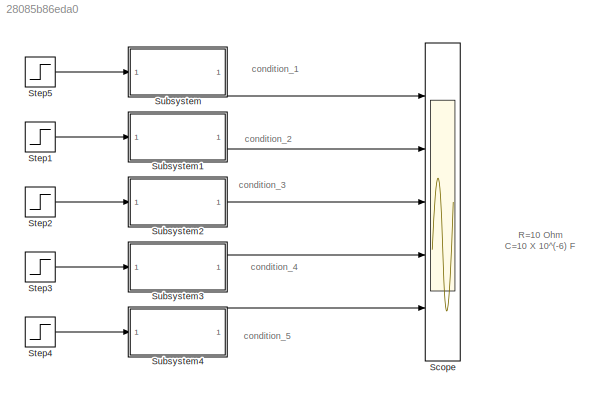
MODEL slx_28085b86eda0
KIND model
CONFIG AbsTol = auto
CONFIG EnableMultiTasking = off
CONFIG FixedStep = auto
CONFIG MaxStep = auto
CONFIG MinStep = auto
CONFIG RelTol = 1e-3
CONFIG SampleTimeConstraint = Unconstrained
CONFIG SolverName = VariableStepAuto
CONFIG StartTime = 0.0
CONFIG StopTime = 10.0
BLOCK [Scope] Scope
  Floating = off
  NumInputPorts = 5
  Ports = [5]
  ScopeSpecificationString = Simulink.scopes.TimeScopeBlockCfg('CurrentConfiguration', extmgr.ConfigurationSet(extmgr.Configuration('Core','General UI',true),extmgr.Configuration('Core','Source UI',true),extmgr.Configuration('Sources','WiredSimulink',true),extmgr.Configuration('Visuals','Time Domain',true,'SerializedDisplays',{struct('MinYLimReal','-0.5875','MaxYLimReal','5.2875','YLabelReal','','MinYLimMag','0.00000','MaxYLi...<+4711ch>
BLOCK [Step] Step1
  After = 5
  Before = 2
  SampleTime = 0
BLOCK [Step] Step2
  After = 13
  Before = 3
  SampleTime = 0
  Time = 2
BLOCK [Step] Step3
  After = 14
  Before = 4
  SampleTime = 0
BLOCK [Step] Step4
  After = 15
  Before = 5
  SampleTime = 0
BLOCK [Step] Step5
  After = 5
  Before = 2
  SampleTime = 0
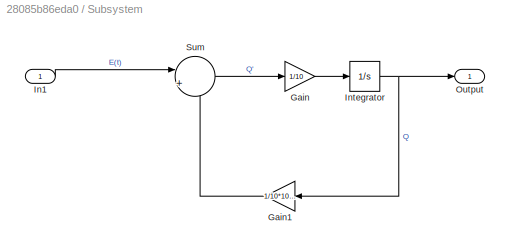
BLOCK [SubSystem] Subsystem
  Ports = [1, 1]
  RequestExecContextInheritance = off
BLOCK [Gain] Subsystem/Gain
  Gain = 1/10
BLOCK [Gain] Subsystem/Gain1
  Gain = 1/10*10^(-6)
  NameLocation = top
BLOCK [Inport] Subsystem/In1
BLOCK [Integrator] Subsystem/Integrator
  Ports = [1, 1]
BLOCK [Outport] Subsystem/Output
  NameLocation = top
BLOCK [Sum] Subsystem/Sum
  Inputs = |+-
  Ports = [2, 1]
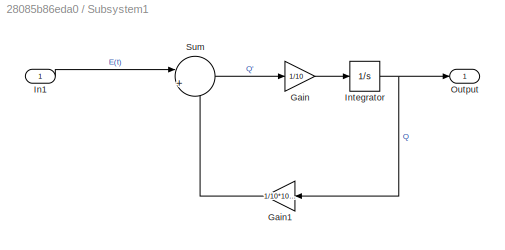
BLOCK [SubSystem] Subsystem1
  Ports = [1, 1]
  RequestExecContextInheritance = off
BLOCK [Gain] Subsystem1/Gain
  Gain = 1/10
BLOCK [Gain] Subsystem1/Gain1
  Gain = 1/10*10^(-6)
  NameLocation = top
BLOCK [Inport] Subsystem1/In1
BLOCK [Integrator] Subsystem1/Integrator
  Ports = [1, 1]
BLOCK [Outport] Subsystem1/Output
BLOCK [Sum] Subsystem1/Sum
  Inputs = |+-
  Ports = [2, 1]
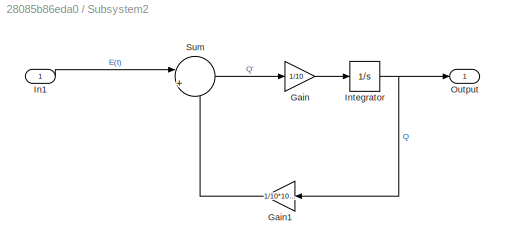
BLOCK [SubSystem] Subsystem2
  Ports = [1, 1]
  RequestExecContextInheritance = off
BLOCK [Gain] Subsystem2/Gain
  Gain = 1/10
BLOCK [Gain] Subsystem2/Gain1
  Gain = 1/10*10^(-6)
  NameLocation = top
BLOCK [Inport] Subsystem2/In1
BLOCK [Integrator] Subsystem2/Integrator
  Ports = [1, 1]
BLOCK [Outport] Subsystem2/Output
BLOCK [Sum] Subsystem2/Sum
  Inputs = |+-
  Ports = [2, 1]
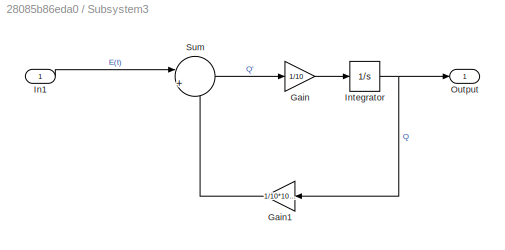
BLOCK [SubSystem] Subsystem3
  Ports = [1, 1]
  RequestExecContextInheritance = off
BLOCK [Gain] Subsystem3/Gain
  Gain = 1/10
BLOCK [Gain] Subsystem3/Gain1
  Gain = 1/10*10^(-6)
  NameLocation = top
BLOCK [Inport] Subsystem3/In1
BLOCK [Integrator] Subsystem3/Integrator
  Ports = [1, 1]
BLOCK [Outport] Subsystem3/Output
BLOCK [Sum] Subsystem3/Sum
  Inputs = |+-
  Ports = [2, 1]
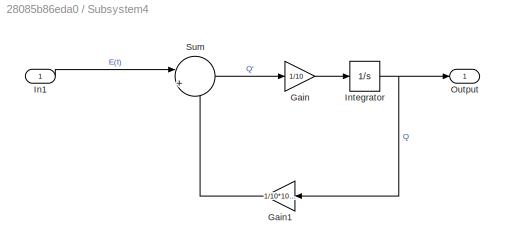
BLOCK [SubSystem] Subsystem4
  Ports = [1, 1]
  RequestExecContextInheritance = off
BLOCK [Gain] Subsystem4/Gain
  Gain = 1/10
BLOCK [Gain] Subsystem4/Gain1
  Gain = 1/10*10^(-6)
  NameLocation = top
BLOCK [Inport] Subsystem4/In1
BLOCK [Integrator] Subsystem4/Integrator
  Ports = [1, 1]
BLOCK [Outport] Subsystem4/Output
BLOCK [Sum] Subsystem4/Sum
  Inputs = |+-
  Ports = [2, 1]
ANNOTATION (root): R=10 Ohm C=10 X 10^(-6) F
ANNOTATION (root): condition_1
ANNOTATION (root): condition_2
ANNOTATION (root): condition_3
ANNOTATION (root): condition_4
ANNOTATION (root): condition_5
LINE Step1:1 -> Subsystem1:1
LINE Step2:1 -> Subsystem2:1
LINE Step3:1 -> Subsystem3:1
LINE Step4:1 -> Subsystem4:1
LINE Step5:1 -> Subsystem:1
LINE Subsystem/Gain1:1 -> Subsystem/Sum:2
LINE Subsystem/Gain:1 -> Subsystem/Integrator:1
LINE Subsystem/In1:1 -> Subsystem/Sum:1
NET Subsystem/Integrator:1 -> Subsystem/Gain1:1, Subsystem/Output:1
LINE Subsystem/Sum:1 -> Subsystem/Gain:1
LINE Subsystem1/Gain1:1 -> Subsystem1/Sum:2
LINE Subsystem1/Gain:1 -> Subsystem1/Integrator:1
LINE Subsystem1/In1:1 -> Subsystem1/Sum:1
NET Subsystem1/Integrator:1 -> Subsystem1/Gain1:1, Subsystem1/Output:1
LINE Subsystem1/Sum:1 -> Subsystem1/Gain:1
LINE Subsystem1:1 -> Scope:2
LINE Subsystem2/Gain1:1 -> Subsystem2/Sum:2
LINE Subsystem2/Gain:1 -> Subsystem2/Integrator:1
LINE Subsystem2/In1:1 -> Subsystem2/Sum:1
NET Subsystem2/Integrator:1 -> Subsystem2/Gain1:1, Subsystem2/Output:1
LINE Subsystem2/Sum:1 -> Subsystem2/Gain:1
LINE Subsystem2:1 -> Scope:3
LINE Subsystem3/Gain1:1 -> Subsystem3/Sum:2
LINE Subsystem3/Gain:1 -> Subsystem3/Integrator:1
LINE Subsystem3/In1:1 -> Subsystem3/Sum:1
NET Subsystem3/Integrator:1 -> Subsystem3/Gain1:1, Subsystem3/Output:1
LINE Subsystem3/Sum:1 -> Subsystem3/Gain:1
LINE Subsystem3:1 -> Scope:4
LINE Subsystem4/Gain1:1 -> Subsystem4/Sum:2
LINE Subsystem4/Gain:1 -> Subsystem4/Integrator:1
LINE Subsystem4/In1:1 -> Subsystem4/Sum:1
NET Subsystem4/Integrator:1 -> Subsystem4/Gain1:1, Subsystem4/Output:1
LINE Subsystem4/Sum:1 -> Subsystem4/Gain:1
LINE Subsystem4:1 -> Scope:5
LINE Subsystem:1 -> Scope:1
note: NET lines group one-source signal fan-out (src -> all destinations, sorted); 1:1 wires keep LINE
